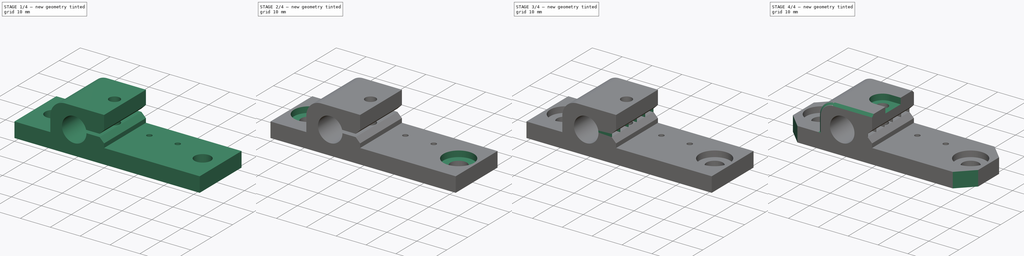
[diagram: build sequence overview — one tinted view per stage of 4, left to right]
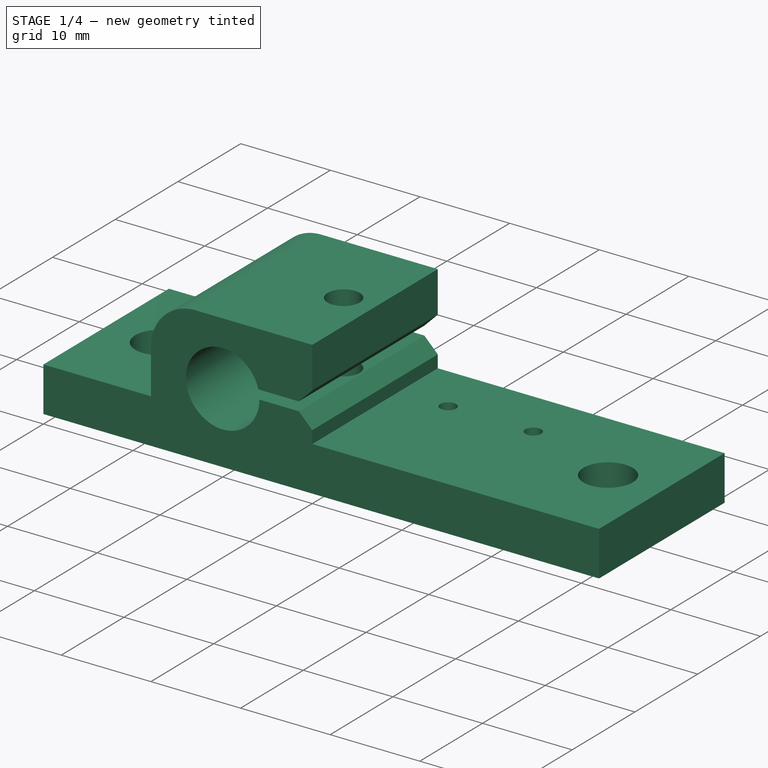
[diagram: stage 1 of 4 — iso view after this stage's code; geometry added in this stage tinted green]
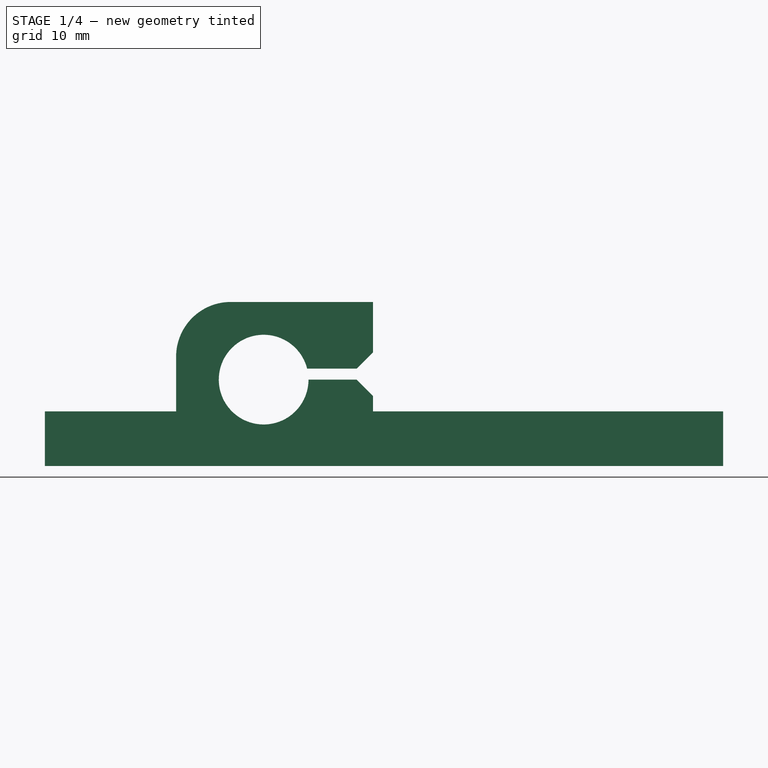
[diagram: stage 1 of 4 — front view after this stage's code; geometry added in this stage tinted green]
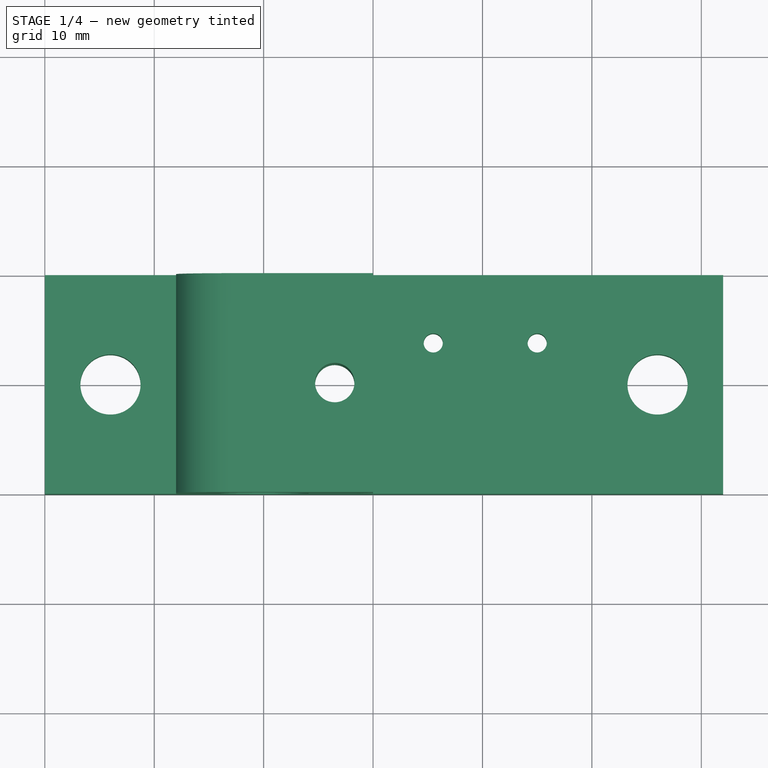
[diagram: stage 1 of 4 — top view after this stage's code; geometry added in this stage tinted green]
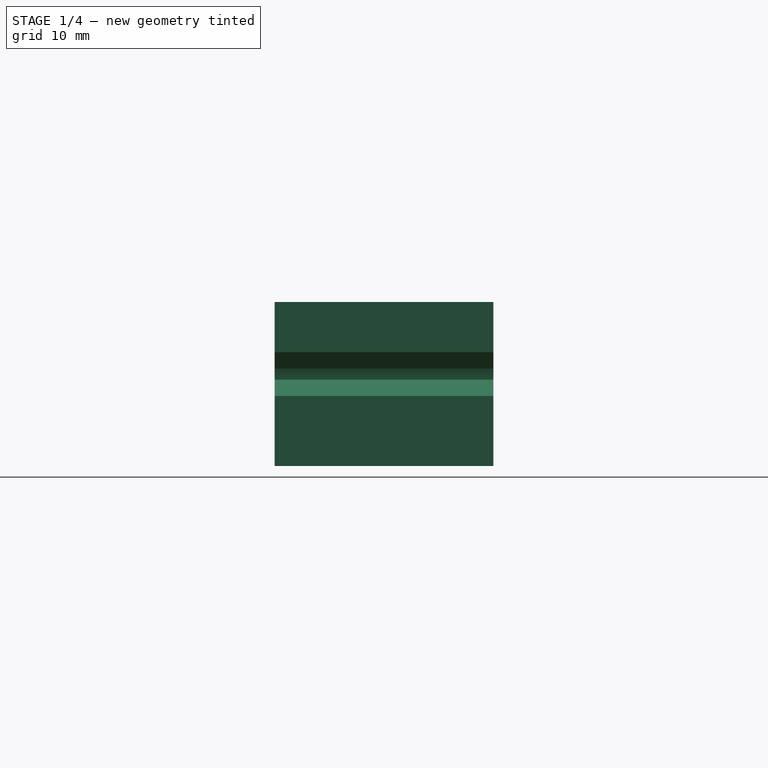
[diagram: stage 1 of 4 — right view after this stage's code; geometry added in this stage tinted green]
FCSTD DOCUMENT  (FreeCAD 0.19R24276 (Git))
Label: _Y_Rod_Holder_With_Endstop
License: CreativeCommons Attribution
LicenseURL: http://creativecommons.org/licenses/by/4.0/
objects: Sketcher::SketchObject×8, PartDesign::Pad×4, PartDesign::Pocket×4, PartDesign::Chamfer×2, PartDesign::LinearPattern×1, PartDesign::Body×1
note: 30 computed .brp shape members not serialized (recipe doc carries the construction recipe); baked Part::Feature solids carry a one-line shape summary decoded from their .brp

FEATURE [Sketcher::SketchObject] Sketch
  FullyConstrained = true
  MapMode = 5
  Placement = pos=(0,0,0) rot=(1,0,0;1.5708rad)
  Support = -> [XZ_Plane]
  sketch-geometry (15):
    g0: ArcOfCircle CenterX=0 CenterY=7.9 CenterZ=0 NormalX=0 NormalY=0 NormalZ=1 AngleXU=0 Radius=4.1 StartAngle=0.246388 EndAngle=6.28319
    g1: LineSegment StartX=-20 StartY=0 StartZ=0 EndX=42 EndY=0 EndZ=0
    g2: LineSegment StartX=-20 StartY=0 StartZ=0 EndX=-20 EndY=5 EndZ=0
    g3: LineSegment StartX=-20 StartY=5 StartZ=0 EndX=-8 EndY=5 EndZ=0
    g4: LineSegment StartX=-8 StartY=5 StartZ=0 EndX=-8 EndY=10 EndZ=0
    g5: LineSegment StartX=-3 StartY=15 StartZ=0 EndX=10 EndY=15 EndZ=0
    g6: LineSegment StartX=10 StartY=15 StartZ=0 EndX=10 EndY=10.4 EndZ=0
    g7: LineSegment StartX=8.5 StartY=8.9 StartZ=0 EndX=3.97618 EndY=8.9 EndZ=0
    g8: LineSegment StartX=4.1 StartY=7.9 StartZ=0 EndX=8.5 EndY=7.9 EndZ=0
    g9: LineSegment StartX=10 StartY=6.4 StartZ=0 EndX=10 EndY=5 EndZ=0
    g10: LineSegment StartX=10 StartY=5 StartZ=0 EndX=42 EndY=5 EndZ=0
    g11: LineSegment StartX=42 StartY=5 StartZ=0 EndX=42 EndY=0 EndZ=0
    g12: ArcOfCircle CenterX=-3 CenterY=10 CenterZ=0 NormalX=0 NormalY=0 NormalZ=1 AngleXU=0 Radius=5 StartAngle=1.5708 EndAngle=3.14159
    g13: LineSegment StartX=8.5 StartY=7.9 StartZ=0 EndX=10 EndY=6.4 EndZ=0
    g14: LineSegment StartX=8.5 StartY=8.9 StartZ=0 EndX=10 EndY=10.4 EndZ=0
  constraints (45):
    c: Diameter(g0) = 8.2
    c: DistanceY(g-1,g0) = 7.9
    c: PointOnObject(g0,g-2)
    c: PointOnObject(g1,g-1)
    c: PointOnObject(g1,g-1)
    c: Coincident(g1,g2)
    c: Vertical(g2)
    c: Coincident(g2,g3)
    c: Horizontal(g3)
    c: Coincident(g3,g4)
    c: Vertical(g4)
    c: Horizontal(g5)
    c: Coincident(g5,g6)
    c: Vertical(g6)
    c: Horizontal(g7)
    c: Horizontal(g8)
    c: Coincident(g9,g10)
    c: Horizontal(g10)
    c: Coincident(g10,g11)
    c: Coincident(g11,g1)
    c: Vertical(g11)
    c: Equal(g2,g11)
    c: DistanceY(g2,g2) = 5
    c: DistanceY(g1,g5) = 15
    c: Coincident(g7,g0)
    c: Coincident(g8,g0)
    c: Vertical(g9)
    c: Tangent(g4,g12) = 1.5708
    c: Tangent(g5,g12) = 1.5708
    c: DistanceX(g4,g-1) = 8
    c: Radius(g12) = 5
    c: DistanceX(g-1,g5) = 10
    c: PointOnObject(g0,g8)
    c: PointOnObject(g9,g6)
    c: DistanceY(g8,g7) = 1
    c: Coincident(g13,g8)
    c: Coincident(g13,g9)
    c: Coincident(g14,g7)
    c: Coincident(g14,g6)
    c: DistanceX(g7,g6) = 1.5
    c: Vertical(g8,g7)
    c: Angle(g13,g9) = 2.35619
    c: Perpendicular(g14,g13)
    c: DistanceX(g1,g-1) = 20
    c: DistanceX(g1,g1) = 62
FEATURE [PartDesign::Pad] Pad  label="Pad_Mainbody"
  AllowMultiFace = false
  Direction = (1,1,1)
  Length = 20
  Length2 = 100
  Midplane = true
  Placement = pos=(0,0,0) rot=(1,0,0;1.5708rad)
  Profile = -> Sketch
  Type = 0
FEATURE [Sketcher::SketchObject] Sketch001
  AttachmentOffset = pos=(0,0,0) rot=(1,0,0;3.14159rad)
  FullyConstrained = true
  MapMode = 5
  Placement = pos=(0,0,0) rot=(1,0,0;3.14159rad)
  Support = -> [XY_Plane]
  sketch-geometry (6):
    g0: Circle CenterX=-14 CenterY=0 CenterZ=0 NormalX=0 NormalY=0 NormalZ=1 AngleXU=0 Radius=2.75
    g1: Circle CenterX=36 CenterY=0 CenterZ=0 NormalX=0 NormalY=0 NormalZ=1 AngleXU=0 Radius=2.75
    g2: Circle CenterX=6.5 CenterY=0 CenterZ=0 NormalX=0 NormalY=0 NormalZ=1 AngleXU=0 Radius=1.8
    g3: LineSegment StartX=15.5 StartY=-3.8 StartZ=0 EndX=25 EndY=-3.8 EndZ=0
    g4: Circle CenterX=15.5 CenterY=-3.8 CenterZ=0 NormalX=0 NormalY=0 NormalZ=1 AngleXU=0 Radius=0.875
    g5: Circle CenterX=25 CenterY=-3.8 CenterZ=0 NormalX=0 NormalY=0 NormalZ=1 AngleXU=0 Radius=0.875
  constraints (17):
    c: DistanceX(g0,g-1) = 14
    c: DistanceX(g-1,g1) = 36
    c: PointOnObject(g2,g-1)
    c: DistanceX(g-1,g2) = 6.5
    c: Diameter(g2) = 3.6
    c: Diameter(g1) = 5.5
    c: Equal(g1,g0)
    c: PointOnObject(g0,g-1)
    c: PointOnObject(g1,g-1)
    c: Horizontal(g3)
    c: DistanceX(g-1,g3) = 15.5
    c: DistanceX(g3,g3) = 9.5
    c: DistanceY(g3,g-1) = 3.8
    c: Coincident(g4,g3)
    c: Coincident(g5,g3)
    c: Equal(g4,g5)
    c: Diameter(g4) = 1.75
FEATURE [PartDesign::Pocket] Pocket  label="Pocket_Bores"
  AllowMultiFace = false
  BaseFeature = -> Pad
  Length = 5
  Length2 = 100
  Placement = pos=(0,0,0) rot=(1,0,0;1.5708rad)
  Profile = -> Sketch001
  Type = 1
FEATURE [Sketcher::SketchObject] Sketch002
  AttachmentOffset = pos=(0,0,0) rot=(1,0,0;3.14159rad)
  FullyConstrained = true
  MapMode = 5
  Placement = pos=(0,0,0) rot=(1,0,0;3.14159rad)
  Support = -> [XY_Plane]
  sketch-geometry (7):
    g0: LineSegment StartX=6.5 StartY=3.40637 StartZ=0 EndX=3.55 EndY=1.70318 EndZ=0
    g1: LineSegment StartX=3.55 StartY=1.70318 StartZ=0 EndX=3.55 EndY=-1.70318 EndZ=0
    g2: LineSegment StartX=3.55 StartY=-1.70318 StartZ=0 EndX=6.5 EndY=-3.40637 EndZ=0
    g3: LineSegment StartX=6.5 StartY=-3.40637 StartZ=0 EndX=9.45 EndY=-1.70318 EndZ=0
    g4: LineSegment StartX=9.45 StartY=-1.70318 StartZ=0 EndX=9.45 EndY=1.70318 EndZ=0
    g5: LineSegment StartX=9.45 StartY=1.70318 StartZ=0 EndX=6.5 EndY=3.40637 EndZ=0
    g6: Circle CenterX=6.5 CenterY=0 CenterZ=0 NormalX=0 NormalY=0 NormalZ=1 AngleXU=0 Radius=3.40637
  constraints (17):
    c: Coincident(g0,g1)
    c: Coincident(g1,g2)
    c: Coincident(g2,g3)
    c: Coincident(g3,g4)
    c: Coincident(g4,g5)
    c: Coincident(g5,g0)
    c: Equal(g0, g1-g5) x5
    c: PointOnObject(g0,g6)
    c: PointOnObject(g1,g6)
    c: PointOnObject(g2,g6)
    c: PointOnObject(g3,g6)
    c: PointOnObject(g4,g6)
    c: PointOnObject(g5,g6)
    c: PointOnObject(g6,g-1)
    c: Vertical(g4)
    c: DistanceX(g-1,g6) = 6.5
    c: DistanceX(g1,g3) = 5.9
FEATURE [PartDesign::Pocket] Pocket001  label="Pocket_HexNut"
  AllowMultiFace = false
  BaseFeature = -> Pocket
  Length = 3
  Length2 = 100
  Placement = pos=(0,0,0) rot=(1,0,0;1.5708rad)
  Profile = -> Sketch002
  Type = 0
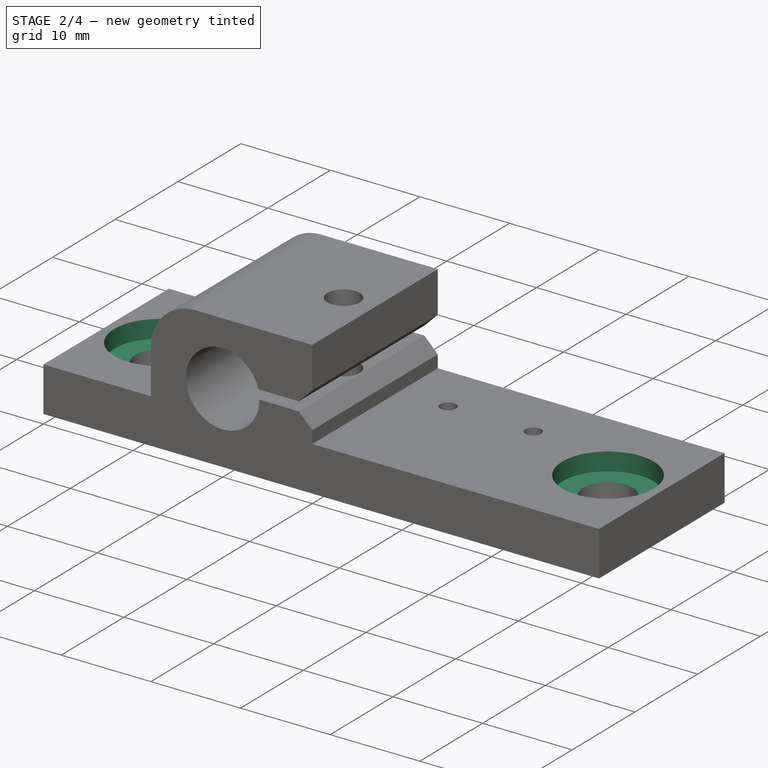
[diagram: stage 2 of 4 — iso view after this stage's code; geometry added in this stage tinted green]
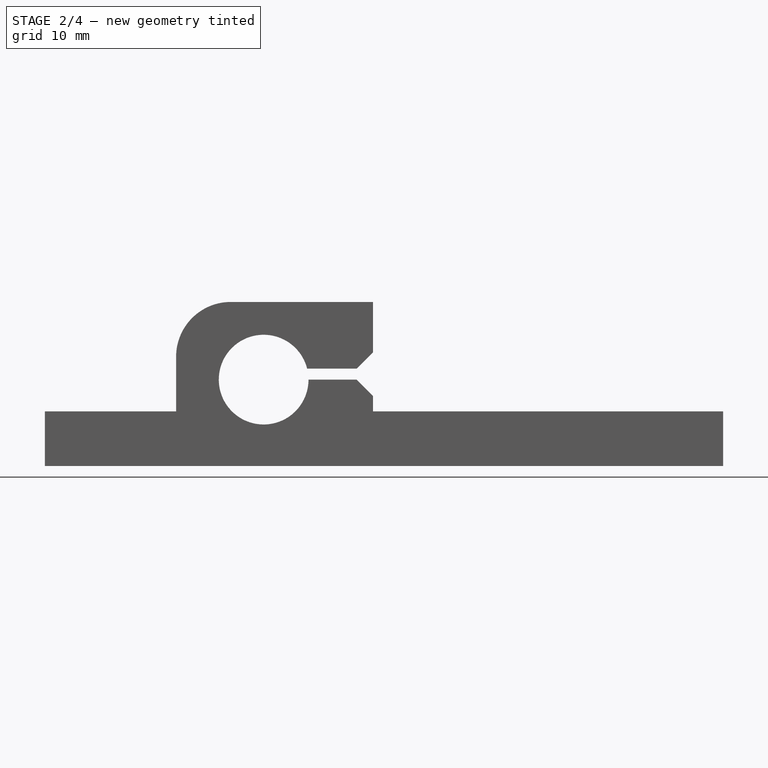
[diagram: stage 2 of 4 — front view after this stage's code; geometry added in this stage tinted green]
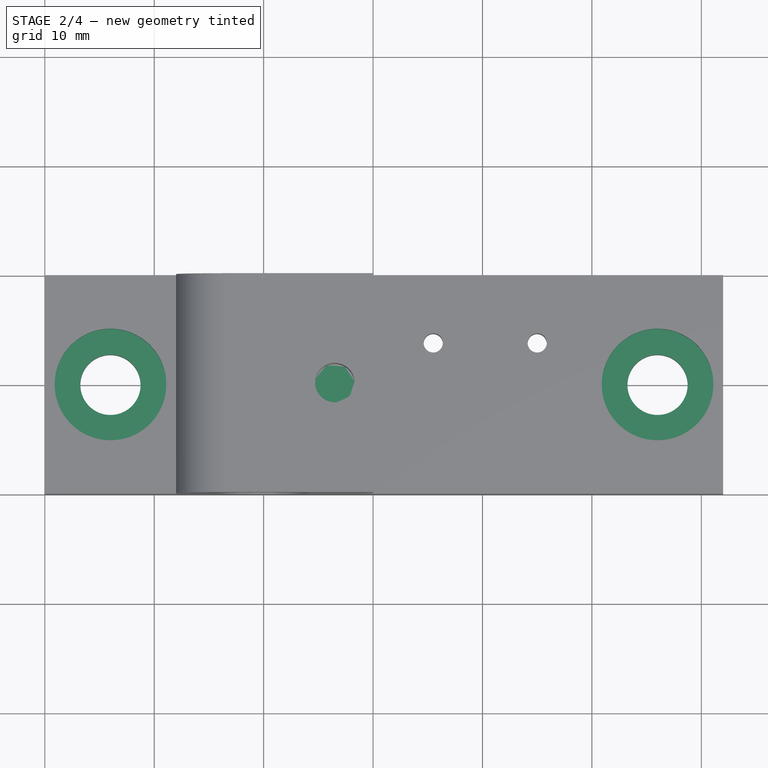
[diagram: stage 2 of 4 — top view after this stage's code; geometry added in this stage tinted green]
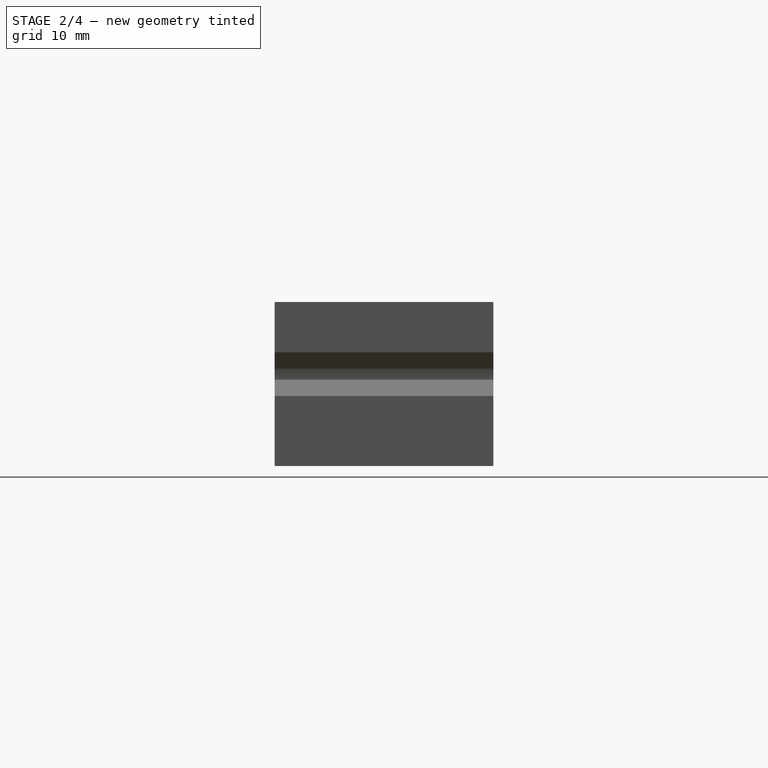
[diagram: stage 2 of 4 — right view after this stage's code; geometry added in this stage tinted green]
FEATURE [Sketcher::SketchObject] Sketch003
  AttachmentOffset = pos=(0,0,5) rot=(0,0,1;0rad)
  ExternalGeometry = -> [Pocket001,Sketch001]
  FullyConstrained = true
  MapMode = 5
  Placement = pos=(0,0,5) rot=(0,0,1;0rad)
  Support = -> [XY_Plane]
  sketch-geometry (2):
    g0: Circle CenterX=36 CenterY=0 CenterZ=0 NormalX=0 NormalY=0 NormalZ=1 AngleXU=0 Radius=5.1
    g1: Circle CenterX=-14 CenterY=4e-16 CenterZ=0 NormalX=0 NormalY=0 NormalZ=1 AngleXU=0 Radius=5.1
  constraints (4):
    c: Equal(g0,g1)
    c: Diameter(g1) = 10.2
    c: Coincident(g1,g-3)
    c: Coincident(g0,g-4)
FEATURE [PartDesign::Pocket] Pocket002  label="Pocket_ScrewCSink"
  AllowMultiFace = false
  BaseFeature = -> Pocket001
  Length = 2
  Length2 = 100
  Placement = pos=(0,0,0) rot=(1,0,0;1.5708rad)
  Profile = -> Sketch003
  Type = 0
FEATURE [Sketcher::SketchObject] Sketch004
  AttachmentOffset = pos=(0,0,8.9) rot=(0,0,1;0rad)
  ExternalGeometry = -> [Pocket002]
  FullyConstrained = true
  MapMode = 5
  Placement = pos=(0,0,8.9) rot=(0,0,1;0rad)
  Support = -> [XY_Plane]
  sketch-geometry (1):
    g0: Circle CenterX=6.5 CenterY=0 CenterZ=0 NormalX=0 NormalY=0 NormalZ=1 AngleXU=0 Radius=1.9
  constraints (2):
    c: Coincident(g0,g-3)
    c: Diameter(g0) = 3.8
FEATURE [PartDesign::Pad] Pad001  label="Pad_Support1"
  AllowMultiFace = false
  BaseFeature = -> Pocket002
  Direction = (1,1,1)
  Length = 0.2
  Length2 = 100
  Placement = pos=(0,0,0) rot=(1,0,0;1.5708rad)
  Profile = -> Sketch004
  Type = 0
FEATURE [Sketcher::SketchObject] Sketch005
  AttachmentOffset = pos=(0,0,3) rot=(0,0,1;0rad)
  ExternalGeometry = -> [Sketch001]
  FullyConstrained = true
  MapMode = 5
  Placement = pos=(0,0,3) rot=(0,0,1;0rad)
  Support = -> [XY_Plane]
  sketch-geometry (1):
    g0: Circle CenterX=6.5 CenterY=0 CenterZ=0 NormalX=0 NormalY=0 NormalZ=1 AngleXU=0 Radius=2.95
  constraints (2):
    c: Diameter(g0) = 5.9
    c: Coincident(g-3,g0)
FEATURE [PartDesign::Pad] Pad002  label="Pad_Support2"
  AllowMultiFace = false
  BaseFeature = -> Pad001
  Direction = (1,1,1)
  Length = 0.2
  Length2 = 100
  Placement = pos=(0,0,0) rot=(1,0,0;1.5708rad)
  Profile = -> Sketch005
  Type = 0
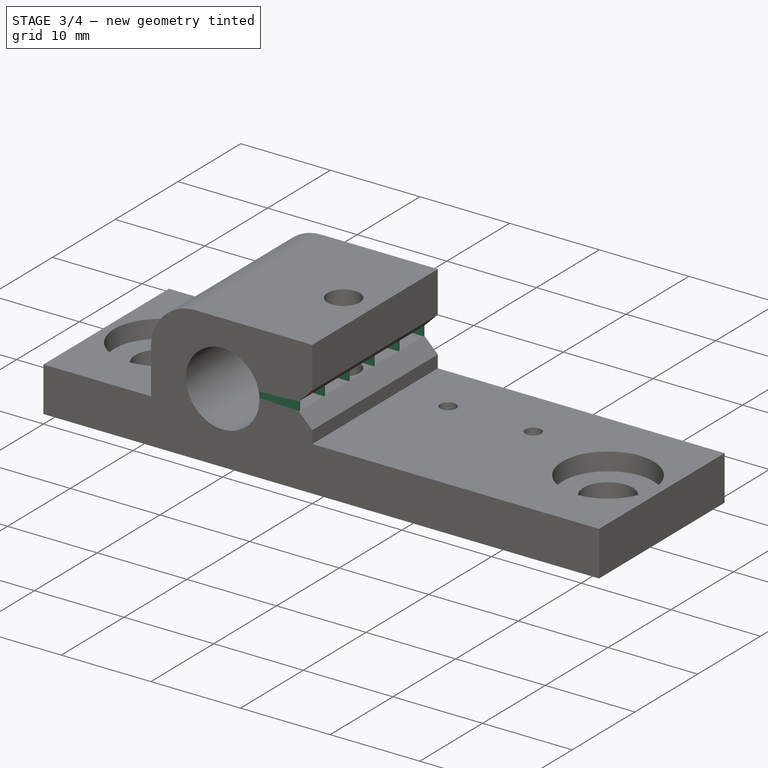
[diagram: stage 3 of 4 — iso view after this stage's code; geometry added in this stage tinted green]
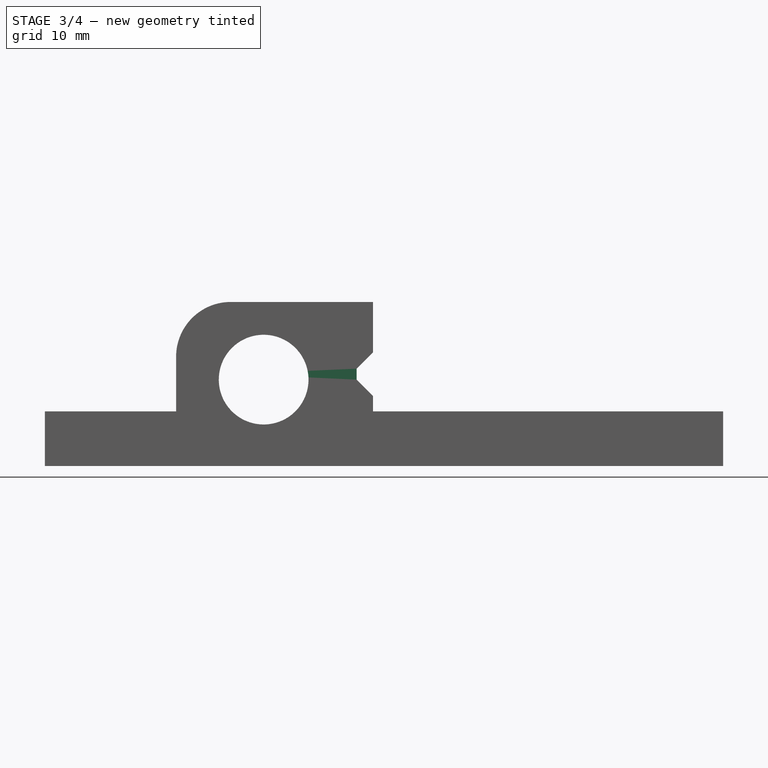
[diagram: stage 3 of 4 — front view after this stage's code; geometry added in this stage tinted green]
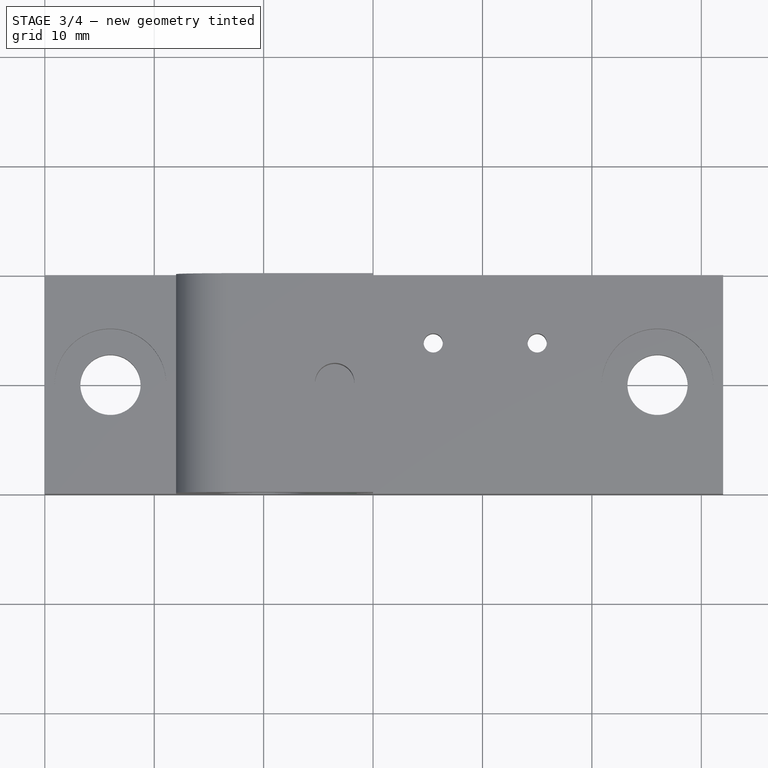
[diagram: stage 3 of 4 — top view after this stage's code; geometry added in this stage tinted green]
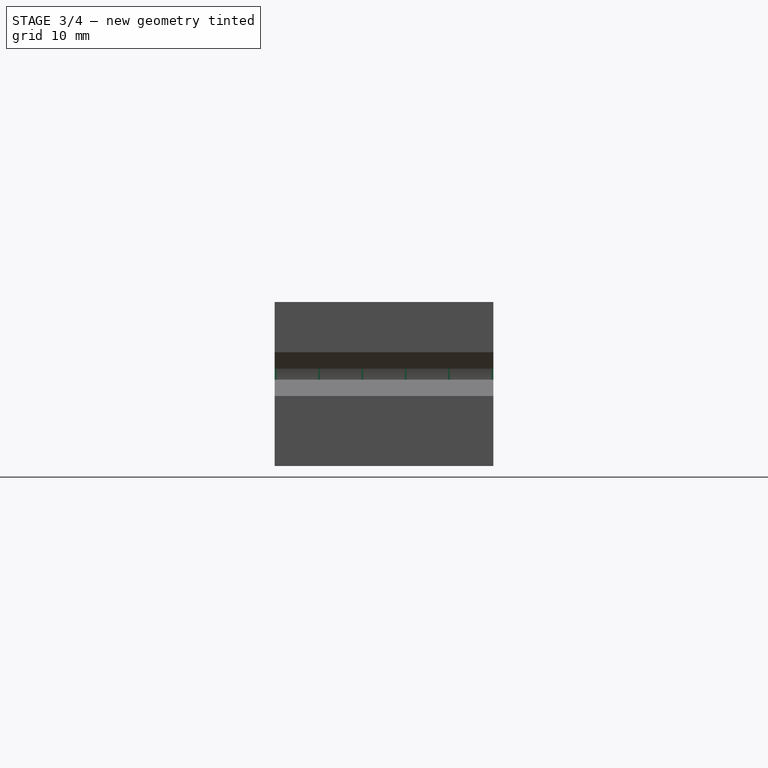
[diagram: stage 3 of 4 — right view after this stage's code; geometry added in this stage tinted green]
FEATURE [Sketcher::SketchObject] Sketch007
  AttachmentOffset = pos=(0,0,15) rot=(0,0,1;0rad)
  ExternalGeometry = -> [Sketch001]
  FullyConstrained = true
  MapMode = 5
  Placement = pos=(0,0,15) rot=(0,0,1;0rad)
  Support = -> [XY_Plane]
  sketch-geometry (4):
    g0: ArcOfCircle CenterX=6.5 CenterY=0 CenterZ=0 NormalX=0 NormalY=0 NormalZ=1 AngleXU=0 Radius=3.65 StartAngle=1.5708 EndAngle=4.71239
    g1: LineSegment StartX=6.5 StartY=3.65 StartZ=0 EndX=10.5 EndY=3.65 EndZ=0
    g2: LineSegment StartX=10.5 StartY=3.65 StartZ=0 EndX=10.5 EndY=-3.65 EndZ=0
    g3: LineSegment StartX=10.5 StartY=-3.65 StartZ=0 EndX=6.5 EndY=-3.65 EndZ=0
  constraints (12):
    c: Coincident(g0,g-3)
    c: Diameter(g0) = 7.3
    c: Coincident(g0,g1) = -1.5708
    c: Coincident(g1,g2)
    c: Vertical(g2)
    c: Coincident(g2,g3)
    c: Coincident(g3,g0)
    c: Horizontal(g3)
    c: Horizontal(g1)
    c: Tangent(g0,g1)
    c: Tangent(g0,g3)
    c: DistanceX(g3,g3) = 4
FEATURE [Sketcher::SketchObject] Sketch006
  AttachmentOffset = pos=(0,0,-10) rot=(0,0,1;0rad)
  FullyConstrained = true
  MapMode = 5
  Placement = pos=(0,10,2.2e-15) rot=(1,0,0;1.5708rad)
  Support = -> [XZ_Plane]
  sketch-geometry (4):
    g0: ArcOfCircle CenterX=0 CenterY=7.9 CenterZ=0 NormalX=0 NormalY=0 NormalZ=1 AngleXU=0 Radius=4.1 StartAngle=0 EndAngle=0.246388
    g1: LineSegment StartX=4.1 StartY=7.9 StartZ=0 EndX=8.5 EndY=7.9 EndZ=0
    g2: LineSegment StartX=8.5 StartY=7.9 StartZ=0 EndX=8.5 EndY=8.9 EndZ=0
    g3: LineSegment StartX=8.5 StartY=8.9 StartZ=0 EndX=3.97618 EndY=8.9 EndZ=0
  constraints (13):
    c: PointOnObject(g0,g-2)
    c: Coincident(g0,g1)
    c: Horizontal(g1)
    c: Vertical(g2)
    c: Coincident(g2,g3)
    c: Coincident(g3,g0)
    c: Horizontal(g3)
    c: Radius(g0) = 4.1
    c: DistanceY(g2,g2) = 1
    c: DistanceX(g1,g1) = 4.4
    c: Horizontal(g0,g0)
    c: DistanceY(g-1,g0) = 7.9
    c: Coincident(g2,g1)
FEATURE [PartDesign::Pad] Pad003
  BaseFeature = -> Pad002
  Direction = (1,1,1)
  Length = 0.2
  Length2 = 100
  Placement = pos=(0,0,0) rot=(1,0,0;1.5708rad)
  Profile = -> Sketch006
  Refine = true
  Type = 0
FEATURE [PartDesign::LinearPattern] LinearPattern
  BaseFeature = -> Pad003
  Direction = -> Sketch006 [N_Axis]
  Length = 19.8
  Occurrences = 6
  Originals = -> [Pad003]
  Placement = pos=(0,0,0) rot=(1,0,0;1.5708rad)
  Refine = true
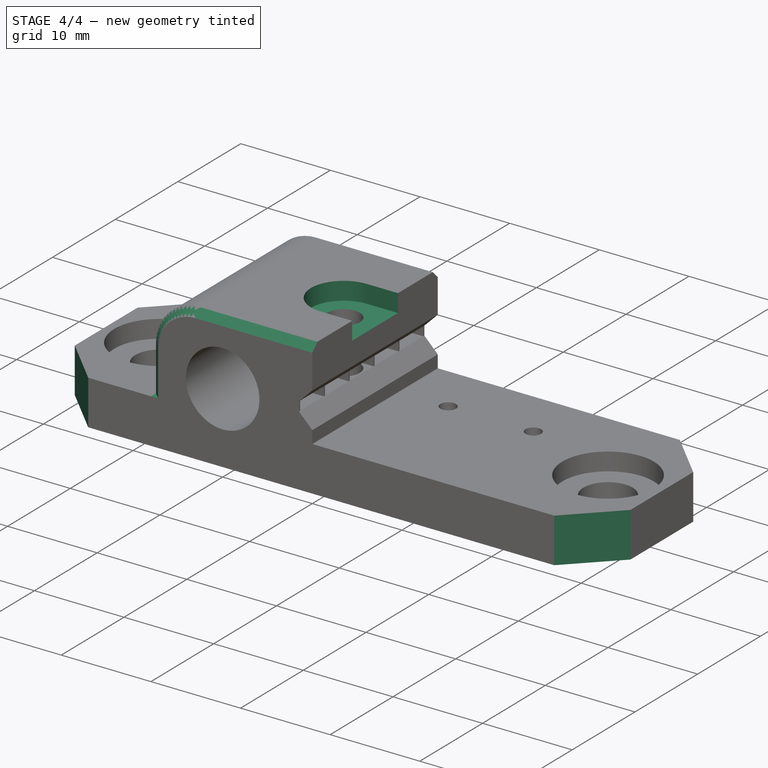
[diagram: stage 4 of 4 — iso view after this stage's code; geometry added in this stage tinted green]
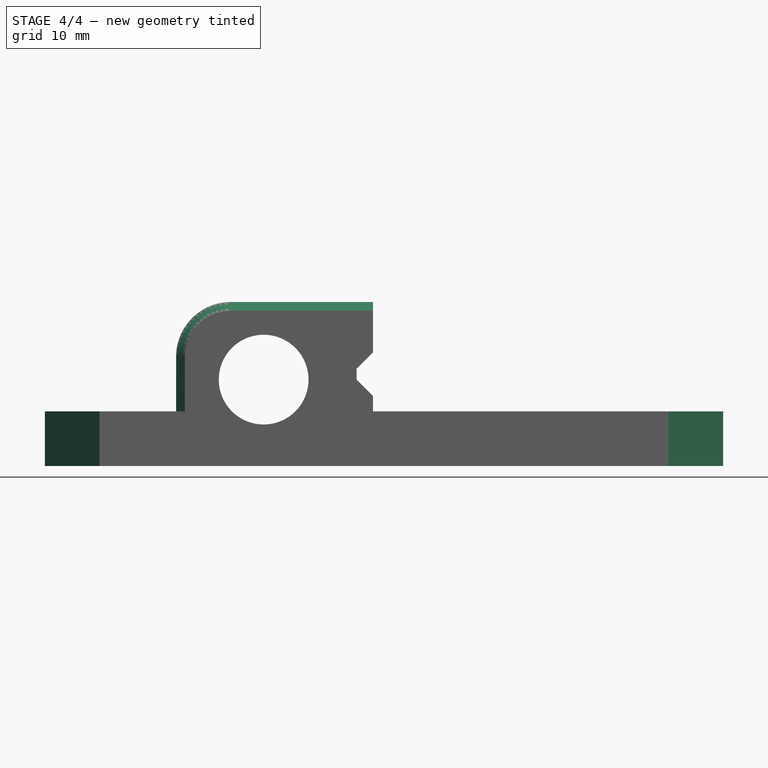
[diagram: stage 4 of 4 — front view after this stage's code; geometry added in this stage tinted green]
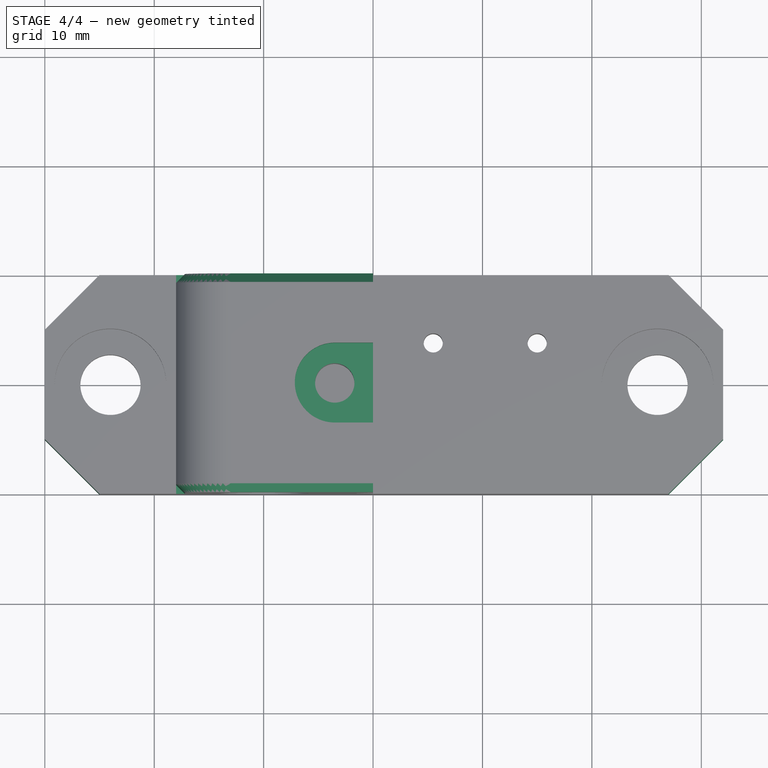
[diagram: stage 4 of 4 — top view after this stage's code; geometry added in this stage tinted green]
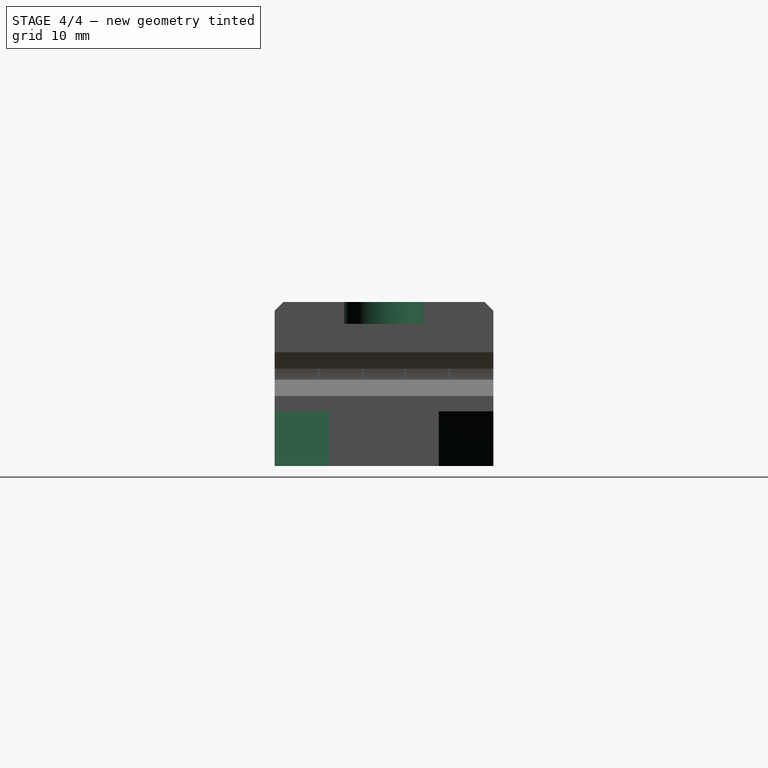
[diagram: stage 4 of 4 — right view after this stage's code; geometry added in this stage tinted green]
FEATURE [PartDesign::Pocket] Pocket003
  BaseFeature = -> LinearPattern
  Length = 2
  Length2 = 100
  Placement = pos=(0,0,0) rot=(1,0,0;1.5708rad)
  Profile = -> Sketch007
  Refine = true
  Type = 0
FEATURE [PartDesign::Chamfer] Chamfer
  Angle = 45
  Base = -> Pocket003 [Edge70,Edge72,Edge53,Edge55]
  BaseFeature = -> Pocket003
  ChamferType = 0
  FlipDirection = false
  Placement = pos=(0,0,0) rot=(1,0,0;1.5708rad)
  Refine = true
  Size = 5
  Size2 = 1
  SupportTransform = false
FEATURE [PartDesign::Chamfer] Chamfer001
  Angle = 45
  Base = -> Chamfer [Edge78,Edge86,Edge90,Edge13,Edge12,Edge10]
  BaseFeature = -> Chamfer
  ChamferType = 0
  FlipDirection = false
  Placement = pos=(0,0,0) rot=(1,0,0;1.5708rad)
  Refine = true
  Size = 0.8
  Size2 = 1
  SupportTransform = false
FEATURE [PartDesign::Body] Body  label="Y_Rod_Holder_With_Endstop"
  Group = -> [Sketch,Pad,Sketch001,Pocket,Sketch002,Pocket001,Sketch003,Pocket002,Sketch004,Pad001,Sketch005,Pad002,Sketch007,Sketch006,Pad003,LinearPattern,Pocket003,Chamfer,Chamfer001]
  Origin = -> Origin
  Tip = -> Chamfer001
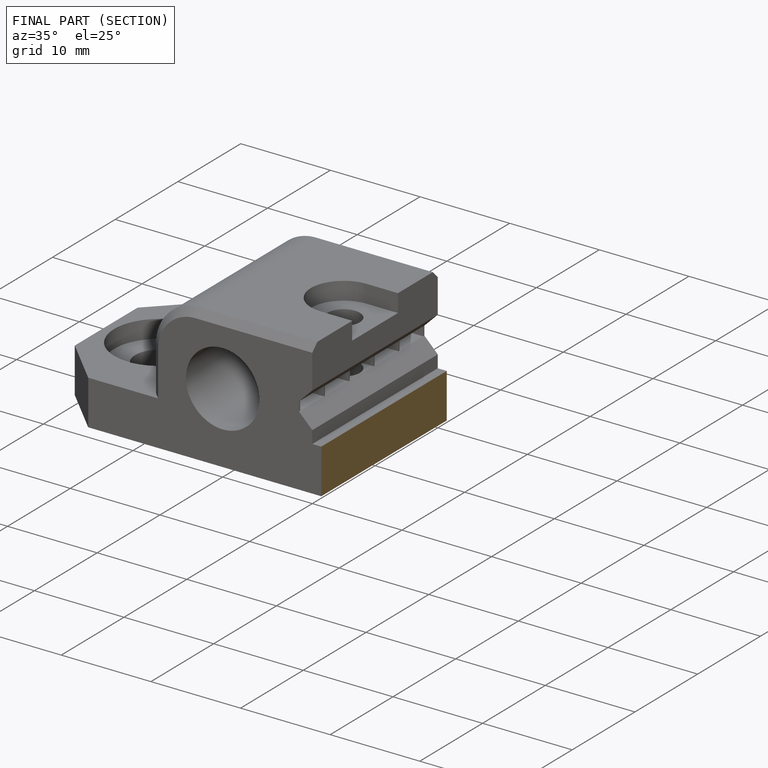
[diagram: finished part — half-section view (interior)]
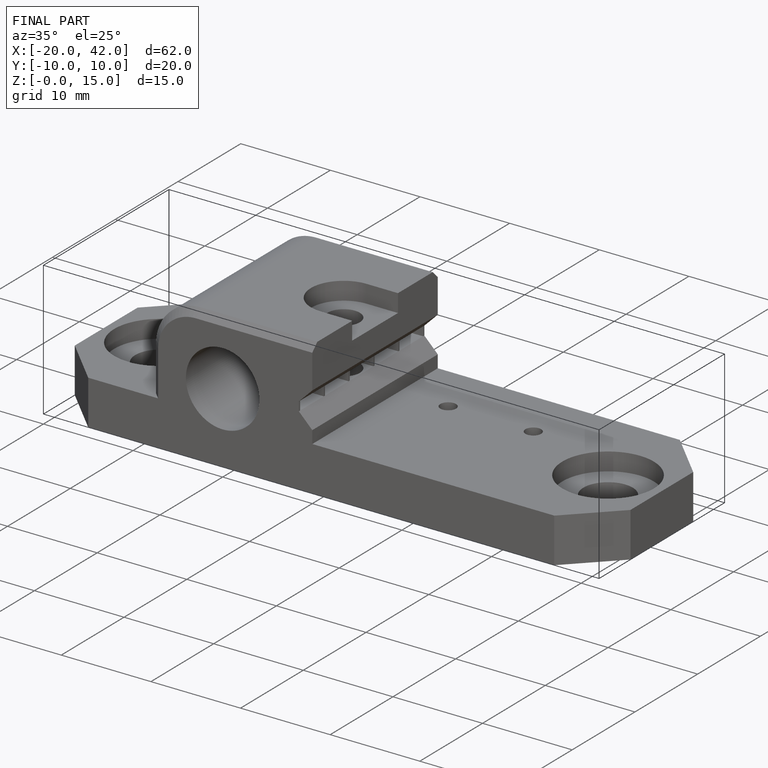
[diagram: finished part — iso view with bounding-box wireframe]
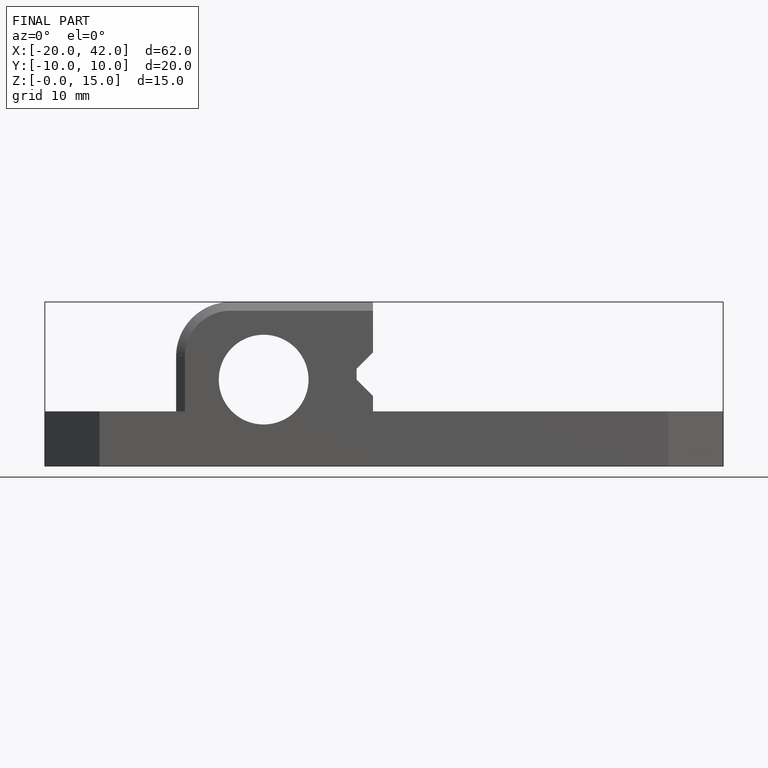
[diagram: finished part — front view with bounding-box wireframe]
